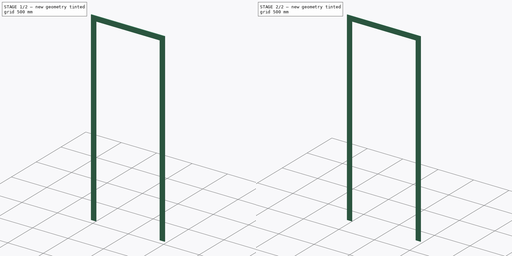
[diagram: build sequence overview — one tinted view per stage of 2, left to right]
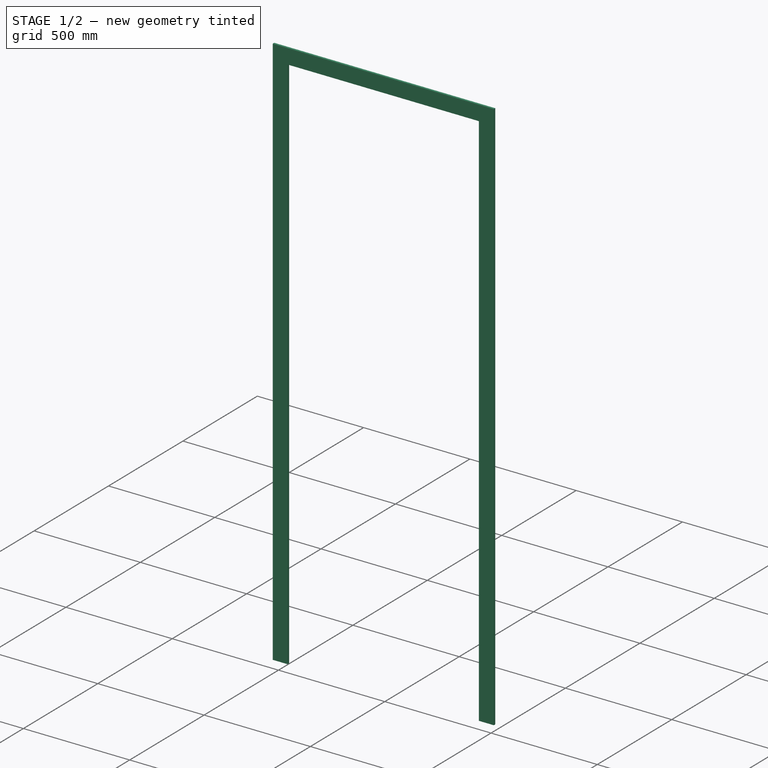
[diagram: stage 1 of 2 — iso view after this stage's code; geometry added in this stage tinted green]
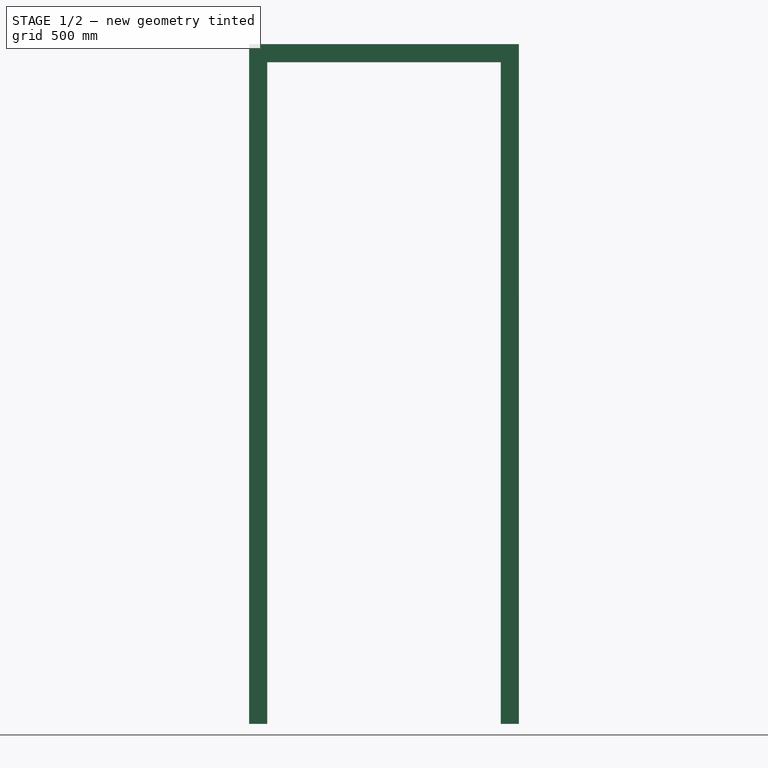
[diagram: stage 1 of 2 — front view after this stage's code; geometry added in this stage tinted green]
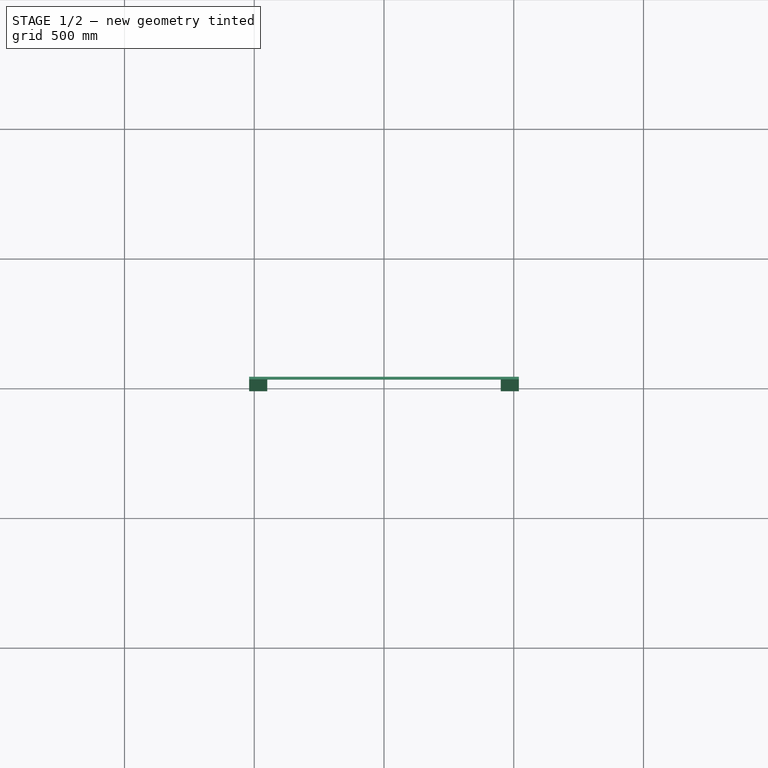
[diagram: stage 1 of 2 — top view after this stage's code; geometry added in this stage tinted green]
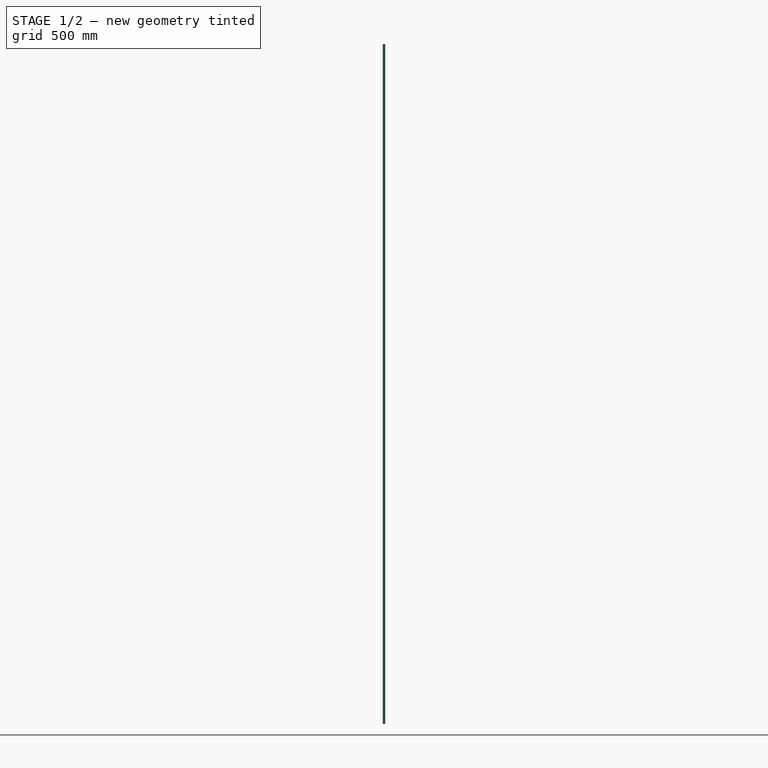
[diagram: stage 1 of 2 — right view after this stage's code; geometry added in this stage tinted green]
FCSTD DOCUMENT  (FreeCAD 0.16R6704 (Git))
Label: Single door with transom and trims
License: CreativeCommons Attribution
LicenseURL: http://creativecommons.org/licenses/by/4.0/
objects: Sketcher::SketchObject×2, Part::FeaturePython×1, Part::Extrusion×1, PartDesign::Fillet×1, Part::Mirroring×1, App::DocumentObjectGroup×1
note: 6 computed .brp shape members not serialized (recipe doc carries the construction recipe); baked Part::Feature solids carry a one-line shape summary decoded from their .brp

FEATURE [Sketcher::SketchObject] Sketch142
  Placement = pos=(0,0,0) rot=(1,0,0;1.5708rad)
  sketch-geometry (16):
    g0: LineSegment StartX=0 StartY=0 StartZ=0 EndX=1000 EndY=0 EndZ=0
    g1: LineSegment StartX=1000 StartY=0 StartZ=0 EndX=1000 EndY=2600 EndZ=0
    g2: LineSegment StartX=1000 StartY=2600 StartZ=0 EndX=0 EndY=2600 EndZ=0
    g3: LineSegment StartX=0 StartY=2600 StartZ=0 EndX=0 EndY=0 EndZ=0
    g4: LineSegment StartX=50 StartY=0 StartZ=0 EndX=950 EndY=0 EndZ=0
    g5: LineSegment StartX=950 StartY=0 StartZ=0 EndX=950 EndY=2550 EndZ=0
    g6: LineSegment StartX=950 StartY=2550 StartZ=0 EndX=50 EndY=2550 EndZ=0
    g7: LineSegment StartX=50 StartY=2550 StartZ=0 EndX=50 EndY=0 EndZ=0
    g8: LineSegment StartX=51 StartY=2549 StartZ=0 EndX=949 EndY=2549 EndZ=0
    g9: LineSegment StartX=949 StartY=2549 StartZ=0 EndX=949 EndY=2101 EndZ=0
    g10: LineSegment StartX=949 StartY=2101 StartZ=0 EndX=51 EndY=2101 EndZ=0
    g11: LineSegment StartX=51 StartY=2101 StartZ=0 EndX=51 EndY=2549 EndZ=0
    g12: LineSegment StartX=51 StartY=2100 StartZ=0 EndX=949 EndY=2100 EndZ=0
    g13: LineSegment StartX=949 StartY=2100 StartZ=0 EndX=949 EndY=0 EndZ=0
    g14: LineSegment StartX=949 StartY=0 StartZ=0 EndX=51 EndY=0 EndZ=0
    g15: LineSegment StartX=51 StartY=0 StartZ=0 EndX=51 EndY=2100 EndZ=0
  constraints (47):
    c: Coincident(g0,g1)
    c: Coincident(g1,g2)
    c: Coincident(g2,g3)
    c: Coincident(g3,g0)
    c: Horizontal(g0)
    c: Horizontal(g2)
    c: Vertical(g1)
    c: Vertical(g3)
    c: Coincident(g4,g5)
    c: Coincident(g5,g6)
    c: Coincident(g7,g4)
    c: Horizontal(g4)
    c: Horizontal(g6)
    c: Vertical(g5)
    c: Vertical(g7)
    c: DistanceY(g1) = 2600  'Altura do vão'
    c: DistanceX(g0) = 1000  'Largura porta'
    c: DistanceX(g2,g6) = 50  'Largura batente 1'
    c: DistanceX(g4,g0) = 50  'Largura batente 2'
    c: DistanceY(g0,g4) = 0
    c: Coincident(g0,g-1)
    c: DistanceY(g6,g2) = 50  'Altura do batente'
    c: Coincident(g6,g7)
    c: Coincident(g8,g9)
    c: Coincident(g9,g10)
    c: Coincident(g10,g11)
    c: Coincident(g11,g8)
    c: Horizontal(g8)
    c: Horizontal(g10)
    c: Vertical(g9)
    c: Vertical(g11)
    c: Coincident(g12,g13)
    c: Coincident(g13,g14)
    c: Coincident(g14,g15)
    c: Coincident(g15,g12)
    c: Horizontal(g12)
    c: Horizontal(g14)
    c: Vertical(g13)
    c: Vertical(g15)
    c: DistanceY(g12,g10) = 1
    c: DistanceX(g10,g12) = 0
    c: DistanceX(g12,g9) = 0
    c: DistanceX(g4,g14) = 1
    c: DistanceY(g-1,g14) = 0
    c: DistanceX(g8,g5) = 1
    c: DistanceY(g8,g5) = 1
    c: DistanceY(g-1,g12) = 2100  'Altura porta'
FEATURE [Part::FeaturePython] Window098  label="Single door with transom"  # WARN: FeaturePython — macro-defined, semantics opaque (R4)
  Base = -> Sketch142
  Height = 2100
  HoleDepth = 0
  MoveWithHost = true
  Normal = (0,1,0)
  Preset = 6
  Role = 1
  Width = 900
  WindowParts = BATENTE | Frame | Wire0,Wire1 | 190.0 | 0.0 | PORTA | Frame | Wire3 | 40.0 | 150.0 | BANDEIRA | Frame | Wire2 | 40.0 | 150.0
FEATURE [Sketcher::SketchObject] Sketch197  label="Esboço guarnições 008"
  ExternalGeometry = -> [Window098]
  Placement = pos=(0,0,0) rot=(1,0,0;1.5708rad)
  Support = -> Window098 [Face2]
  sketch-geometry (11):
    g0: LineSegment StartX=50 StartY=0 StartZ=0 EndX=-20 EndY=0 EndZ=0
    g1: LineSegment StartX=-20 StartY=0 StartZ=0 EndX=-20 EndY=2620 EndZ=0
    g2: LineSegment StartX=-20 StartY=2620 StartZ=0 EndX=1020 EndY=2620 EndZ=0
    g3: LineSegment StartX=1020 StartY=2620 StartZ=0 EndX=1020 EndY=0 EndZ=0
    g4: LineSegment StartX=1020 StartY=0 StartZ=0 EndX=950 EndY=0 EndZ=0
    g5: LineSegment StartX=950 StartY=0 StartZ=0 EndX=950 EndY=2550 EndZ=0
    g6: LineSegment StartX=950 StartY=2550 StartZ=0 EndX=50 EndY=2550 EndZ=0
    g7: LineSegment StartX=50 StartY=2550 StartZ=0 EndX=50 EndY=0 EndZ=0
    g8: LineSegment [constr] StartX=246 StartY=2620 StartZ=0 EndX=246 EndY=2550 EndZ=0
    g9: LineSegment [constr] StartX=950 StartY=2260 StartZ=0 EndX=1020 EndY=2260 EndZ=0
    g10: LineSegment [constr] StartX=50 StartY=1945.23 StartZ=0 EndX=-20 EndY=1945.23 EndZ=0
  constraints (29):
    c: Coincident(g-3,g0)
    c: Horizontal(g0)
    c: Coincident(g0,g1)
    c: Vertical(g1)
    c: Coincident(g1,g2)
    c: Horizontal(g2)
    c: Coincident(g2,g3)
    c: Vertical(g3)
    c: Coincident(g3,g4)
    c: Coincident(g4,g-5)
    c: Horizontal(g4)
    c: Coincident(g4,g5)
    c: Coincident(g5,g-5)
    c: Coincident(g5,g6)
    c: Coincident(g6,g-4)
    c: Coincident(g6,g7)
    c: Coincident(g7,g0)
    c: DistanceX(g1,g6) = 70  'Largura guarnição'
    c: PointOnObject(g8,g2)
    c: PointOnObject(g8,g-4)
    c: PointOnObject(g9,g-5)
    c: PointOnObject(g9,g3)
    c: PointOnObject(g10,g-3)
    c: PointOnObject(g10,g1)
    c: Angle(g8) = -1.5708
    c: Angle(g10) = 3.14159
    c: Angle(g9) = 0
    c: Equal(g10,g8)
    c: Equal(g8,g9)
FEATURE [Part::Extrusion] Extrude_Sketch197  label="Trim"
  Base = -> Sketch197
  Dir = (0,-10,0)
  Solid = true
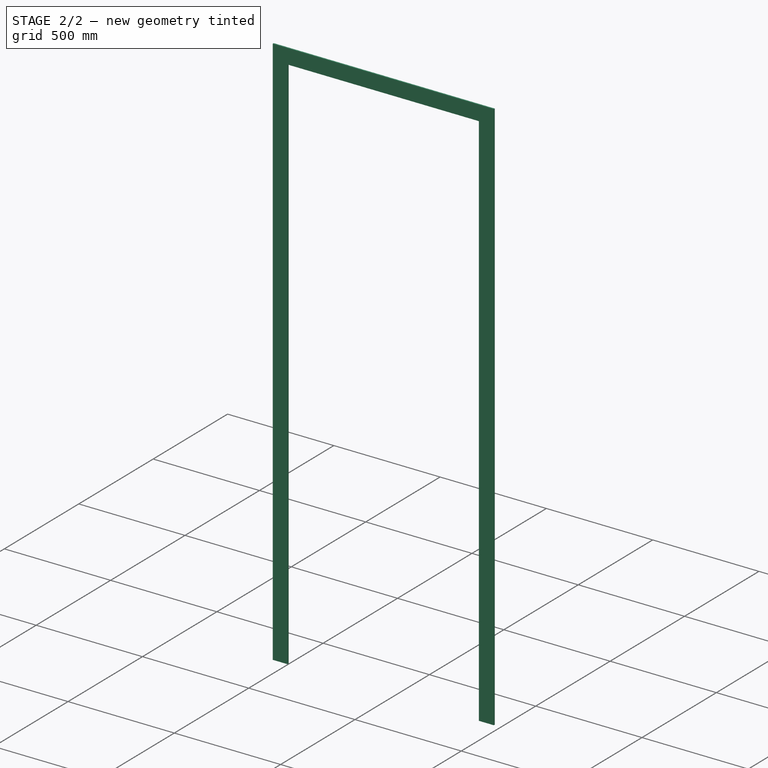
[diagram: stage 2 of 2 — iso view after this stage's code; geometry added in this stage tinted green]
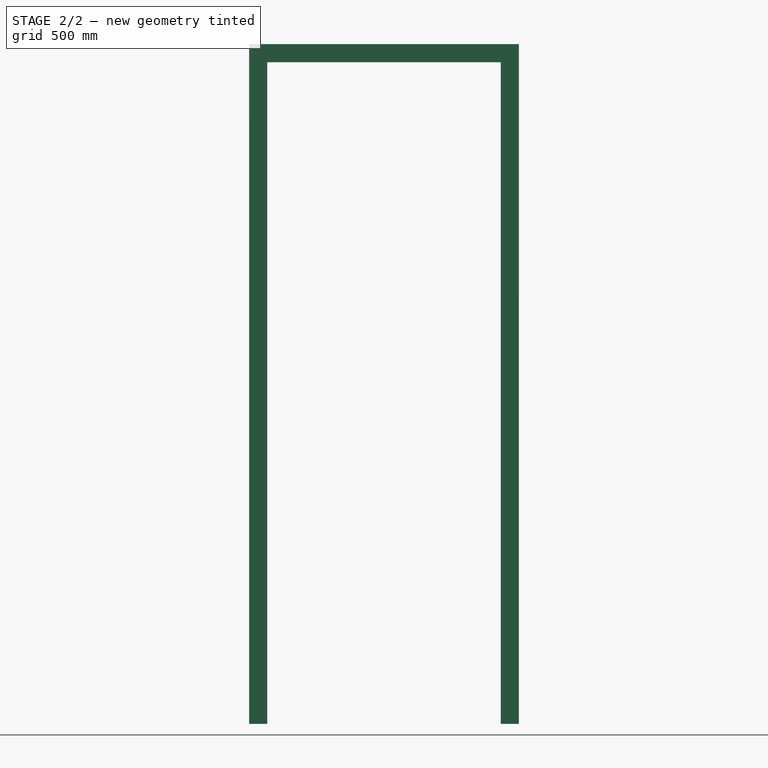
[diagram: stage 2 of 2 — front view after this stage's code; geometry added in this stage tinted green]
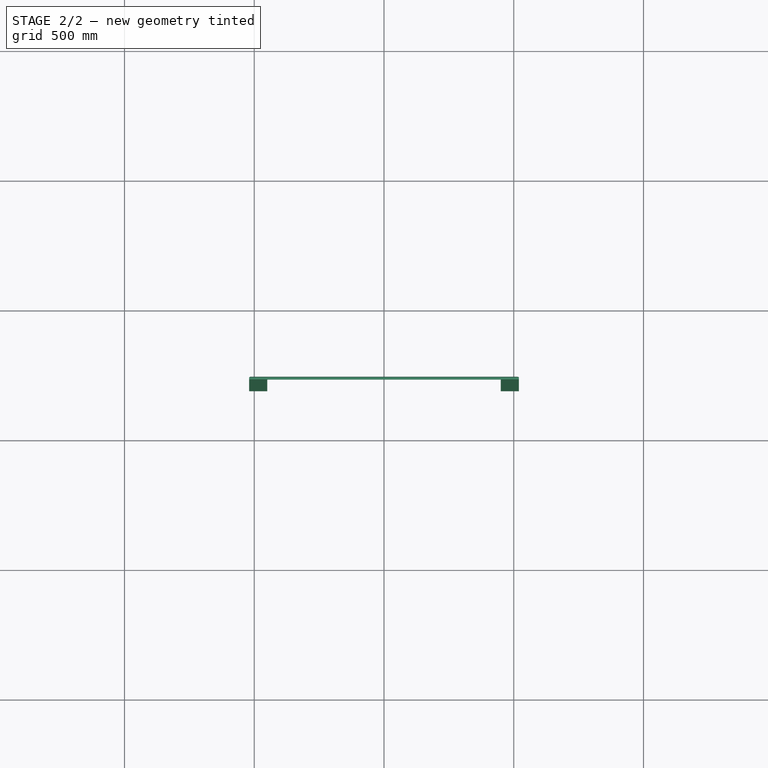
[diagram: stage 2 of 2 — top view after this stage's code; geometry added in this stage tinted green]
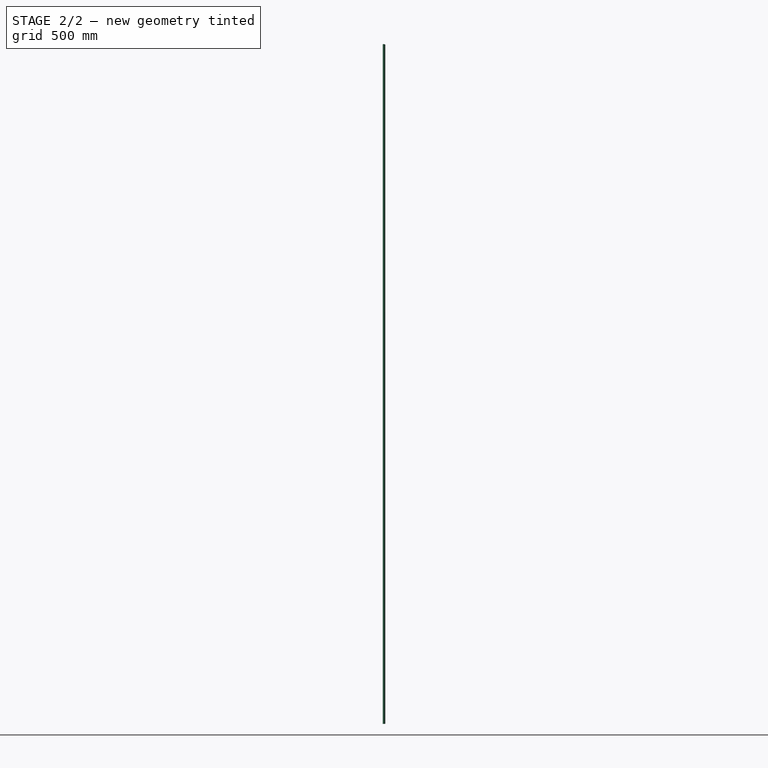
[diagram: stage 2 of 2 — right view after this stage's code; geometry added in this stage tinted green]
FEATURE [PartDesign::Fillet] Fillet005  label="final trim"
  Base = -> Extrude_Sketch197 [Edge13,Edge19,Edge22,Edge10,Edge24,Edge7]
  Radius = 5
FEATURE [Part::Mirroring] Part__Mirroring005  label="Final trim (Mirror #6)"
  Base = (0,0,0)
  Normal = (0,1,0)
  Placement = pos=(0,190,0) rot=(0,0,1;0rad)
  Source = -> Fillet005
FEATURE [App::DocumentObjectGroup] Grupo119  label="Single door with transom and trims"
  Group = -> [Window098,Extrude_Sketch197,Part__Mirroring005]
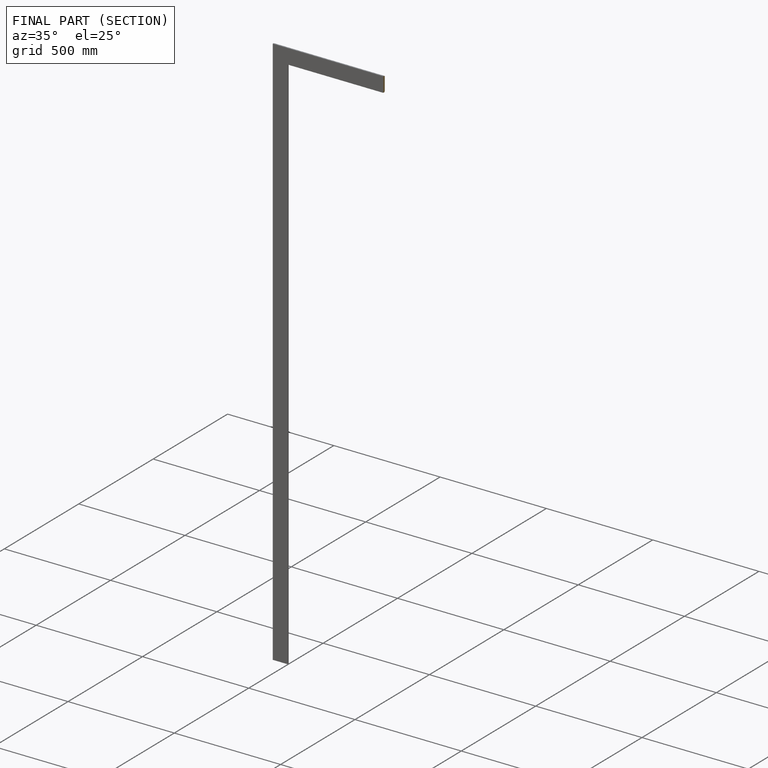
[diagram: finished part — half-section view (interior)]
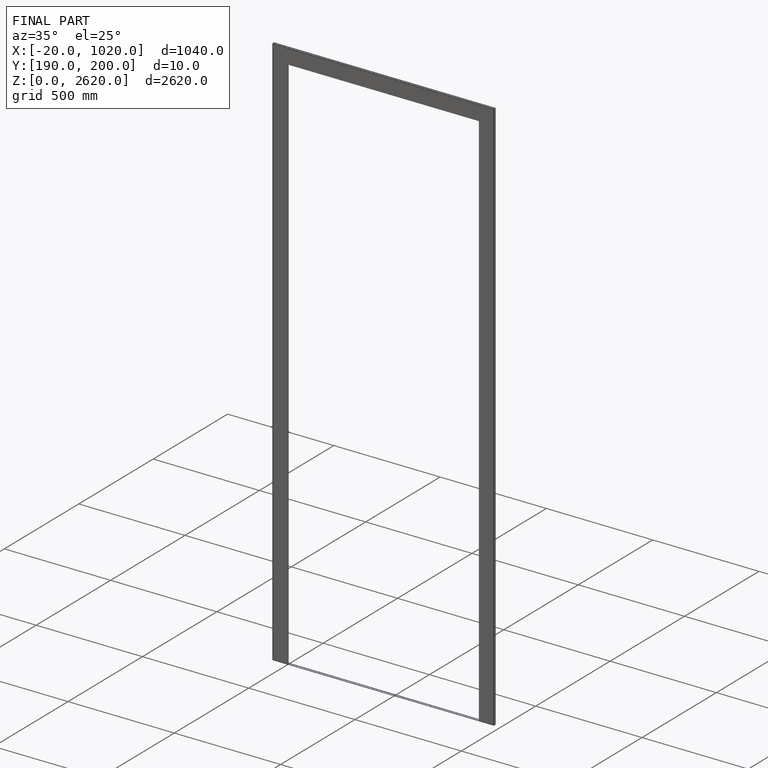
[diagram: finished part — iso view with bounding-box wireframe]
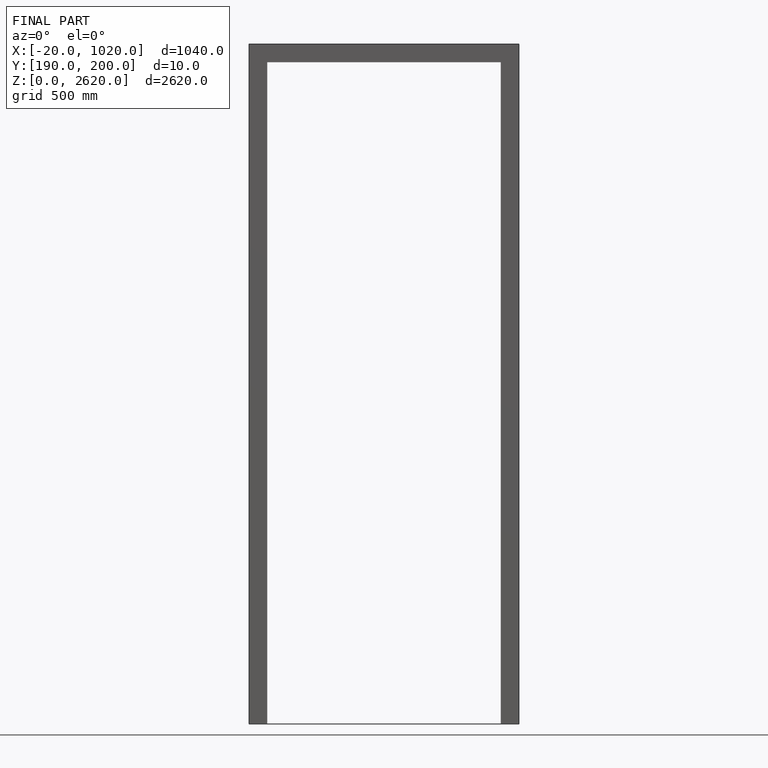
[diagram: finished part — front view with bounding-box wireframe]
